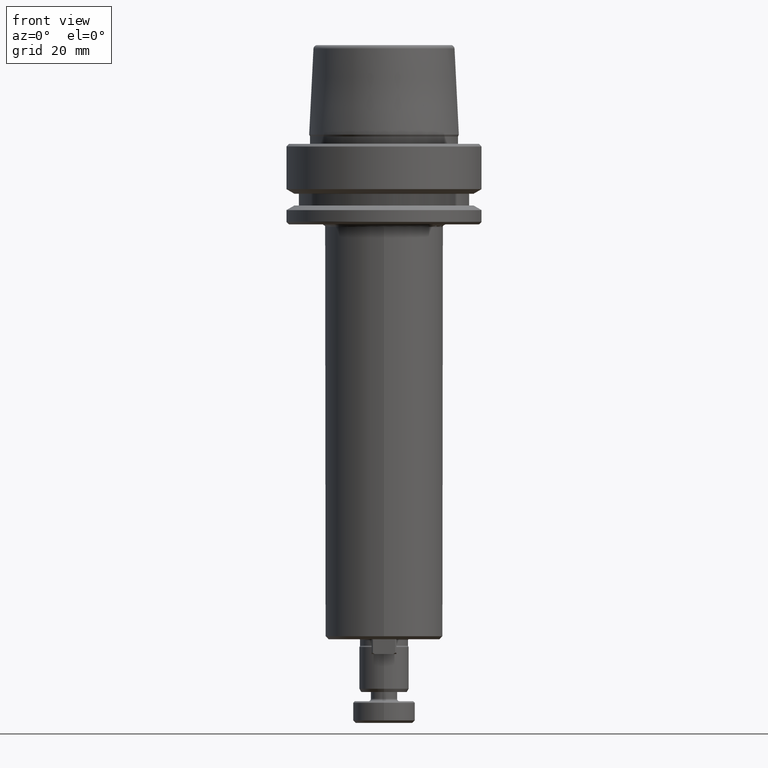
[diagram: clean part render]
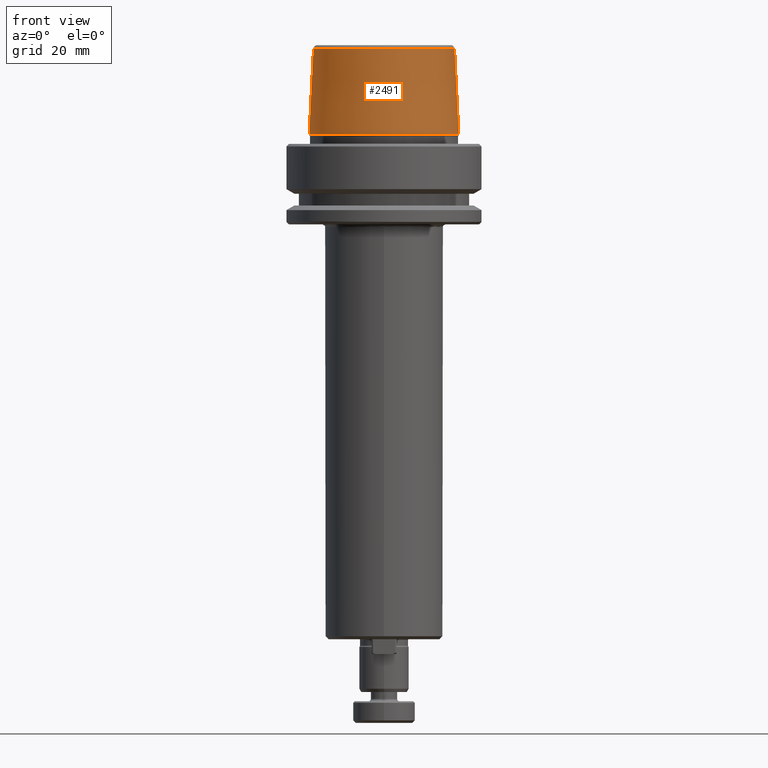
[diagram: same view with one face highlighted and labeled with its STEP entity id]
A machine part, front view. The second image highlights one B-rep face of the part: STEP entity #2491.
In plain terms, the highlighted conical surface has half-angle 2.868 deg.
Its self-contained STEP definition (entity closure, byte-faithful):
#28 = VECTOR ( 'NONE', #1884, 1000.000000000000200 ) ;
#35 = CARTESIAN_POINT ( 'NONE',  ( 22.77957961851797100, 2.874852597157249900E-015, 30.76004333261571900 ) ) ;
#66 = AXIS2_PLACEMENT_3D ( 'NONE', #1184, #971, #300 ) ;
#204 = DIRECTION ( 'NONE',  ( -1.000000000000000000, 0.0000000000000000000, 0.0000000000000000000 ) ) ;
#206 = CIRCLE ( 'NONE', #1681, 22.77957961851797100 ) ;
#300 = DIRECTION ( 'NONE',  ( 1.000000000000000000, 0.0000000000000000000, 0.0000000000000000000 ) ) ;
#392 = CARTESIAN_POINT ( 'NONE',  ( 24.17032625081241900, 0.0000000000000000000, 3.000000000000002700 ) ) ;
#646 = LINE ( 'NONE', #1434, #28 ) ;
#715 = CARTESIAN_POINT ( 'NONE',  ( 24.17032625081241900, 2.960011267740467600E-015, 3.000000000000002700 ) ) ;
#852 = VERTEX_POINT ( 'NONE', #392 ) ;
#928 = VECTOR ( 'NONE', #1356, 1000.000000000000200 ) ;
#943 = EDGE_CURVE ( 'NONE', #2417, #852, #2760, .T. ) ;
#971 = DIRECTION ( 'NONE',  ( -0.0000000000000000000, -0.0000000000000000000, 1.000000000000000000 ) ) ;
#1159 = DIRECTION ( 'NONE',  ( -0.0000000000000000000, -0.0000000000000000000, 1.000000000000000000 ) ) ;
#1184 = CARTESIAN_POINT ( 'NONE',  ( 0.0000000000000000000, 0.0000000000000000000, 3.000000000000002700 ) ) ;
#1356 = DIRECTION ( 'NONE',  ( 0.05003611051310812000, 6.127656258166108900E-018, -0.9987474093306675200 ) ) ;
#1367 = VERTEX_POINT ( 'NONE', #35 ) ;
#1409 = FACE_OUTER_BOUND ( 'NONE', #2109, .T. ) ;
#1434 = CARTESIAN_POINT ( 'NONE',  ( -24.17032625081241900, 0.0000000000000000000, 3.000000000000002700 ) ) ;
#1516 = CARTESIAN_POINT ( 'NONE',  ( 0.0000000000000000000, 0.0000000000000000000, 3.000000000000002700 ) ) ;
#1525 = ORIENTED_EDGE ( 'NONE', *, *, #2679, .F. ) ;
#1681 = AXIS2_PLACEMENT_3D ( 'NONE', #2468, #1159, #2666 ) ;
#1683 = VERTEX_POINT ( 'NONE', #2318 ) ;
#1695 = EDGE_CURVE ( 'NONE', #1683, #2417, #646, .T. ) ;
#1711 = ORIENTED_EDGE ( 'NONE', *, *, #2621, .F. ) ;
#1794 = ORIENTED_EDGE ( 'NONE', *, *, #943, .T. ) ;
#1884 = DIRECTION ( 'NONE',  ( -0.05003611051310812000, 0.0000000000000000000, -0.9987474093306675200 ) ) ;
#1942 = CONICAL_SURFACE ( 'NONE', #2578, 24.17032625081241900, 0.05005701257456005000 ) ;
#2109 = EDGE_LOOP ( 'NONE', ( #1711, #1525, #2366, #1794 ) ) ;
#2159 = CARTESIAN_POINT ( 'NONE',  ( -24.17032625081241900, 2.960011267740467600E-015, 3.000000000000002700 ) ) ;
#2317 = LINE ( 'NONE', #715, #928 ) ;
#2318 = CARTESIAN_POINT ( 'NONE',  ( -22.77957961851797100, 0.0000000000000000000, 30.76004333261571900 ) ) ;
#2366 = ORIENTED_EDGE ( 'NONE', *, *, #1695, .T. ) ;
#2392 = DIRECTION ( 'NONE',  ( 0.0000000000000000000, 0.0000000000000000000, -1.000000000000000000 ) ) ;
#2417 = VERTEX_POINT ( 'NONE', #2159 ) ;
#2468 = CARTESIAN_POINT ( 'NONE',  ( 0.0000000000000000000, 0.0000000000000000000, 30.76004333261571900 ) ) ;
#2491 = ADVANCED_FACE ( 'NONE', ( #1409 ), #1942, .T. ) ;
#2578 = AXIS2_PLACEMENT_3D ( 'NONE', #1516, #2392, #204 ) ;
#2621 = EDGE_CURVE ( 'NONE', #1367, #852, #2317, .T. ) ;
#2666 = DIRECTION ( 'NONE',  ( 1.000000000000000000, 0.0000000000000000000, 0.0000000000000000000 ) ) ;
#2679 = EDGE_CURVE ( 'NONE', #1683, #1367, #206, .T. ) ;
#2760 = CIRCLE ( 'NONE', #66, 24.17032625081241900 ) ;